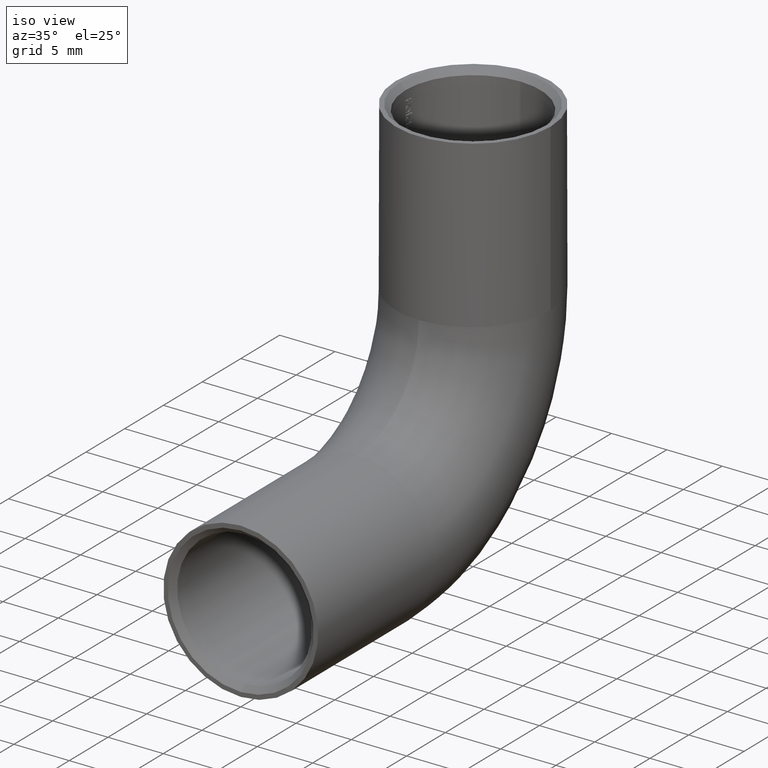
[diagram: clean part render]
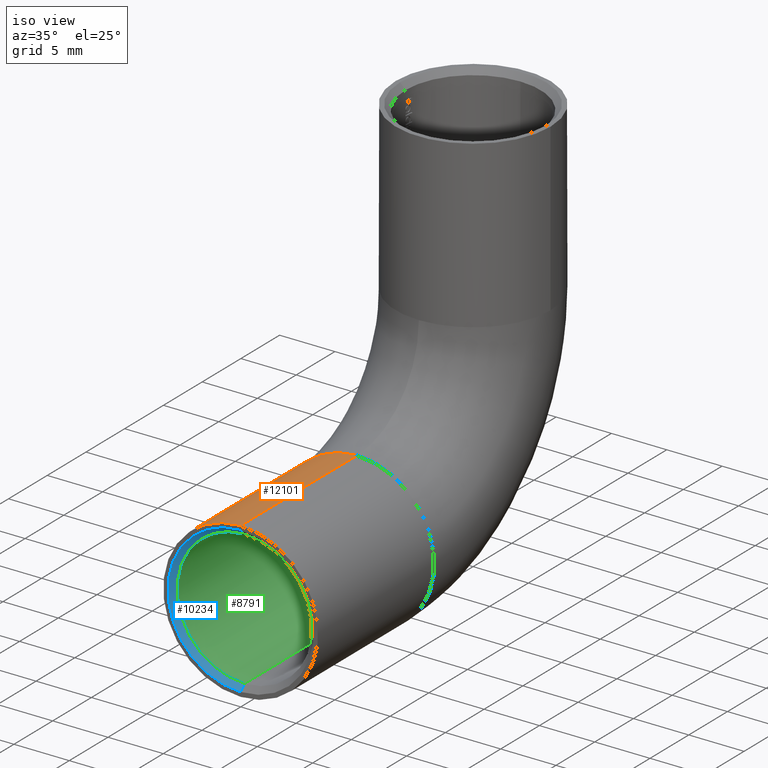
[diagram: same view with three faces highlighted in distinct colors, each labeled with its STEP entity id]
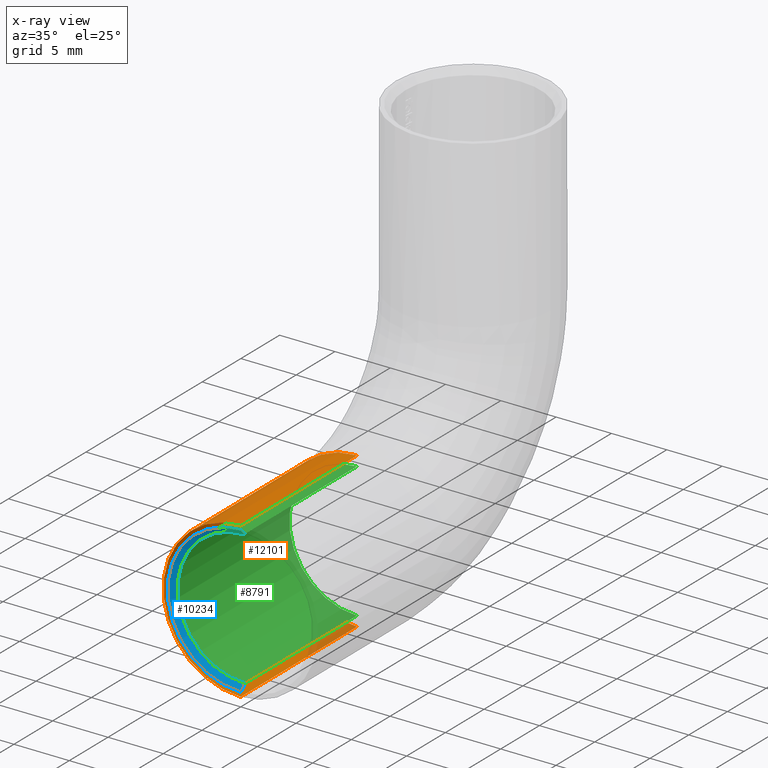
[diagram: x-ray of the same camera — body ghosted, the three highlighted faces saturated]
A machine part, iso view with three faces highlighted in distinct colors.
The next image is the same camera in x-ray (body ghosted, the three faces saturated) — at least one of them is partly hidden behind the body in this view.
Their STEP definitions:

[orange] entity #12101 — the highlighted cylindrical surface (partial cylindrical patch) has radius 7 mm, axis along (-0, -1, -0).
#1 = VERTEX_POINT ( 'NONE', #10542 ) ;
#294 = CARTESIAN_POINT ( 'NONE',  ( 0.000000000000000000, 0.000000000000000000, 0.000000000000000000 ) ) ;
#340 = EDGE_LOOP ( 'NONE', ( #7789, #990, #2718, #6405 ) ) ;
#864 = CARTESIAN_POINT ( 'NONE',  ( 8.572527594031474176E-16, 14.99999999999999645, 7.000000000000002665 ) ) ;
#990 = ORIENTED_EDGE ( 'NONE', *, *, #6278, .F. ) ;
#1007 = AXIS2_PLACEMENT_3D ( 'NONE', #4500, #3562, #1399 ) ;
#1399 = DIRECTION ( 'NONE',  ( 0.000000000000000000, 0.000000000000000000, 1.000000000000000000 ) ) ;
#1827 = FACE_OUTER_BOUND ( 'NONE', #340, .T. ) ;
#2207 = DIRECTION ( 'NONE',  ( 0.000000000000000000, 0.000000000000000000, 1.000000000000000000 ) ) ;
#2718 = ORIENTED_EDGE ( 'NONE', *, *, #8058, .T. ) ;
#3151 = DIRECTION ( 'NONE',  ( -0.000000000000000000, -1.000000000000000000, -1.156482317317872711E-16 ) ) ;
#3515 = CIRCLE ( 'NONE', #6866, 7.000000000000000000 ) ;
#3562 = DIRECTION ( 'NONE',  ( 0.000000000000000000, 1.000000000000000000, 0.000000000000000000 ) ) ;
#3849 = CARTESIAN_POINT ( 'NONE',  ( 8.572527594031473190E-16, 0.000000000000000000, 7.000000000000000000 ) ) ;
#4500 = CARTESIAN_POINT ( 'NONE',  ( 0.000000000000000000, 14.99999999999999645, 1.734723475976808672E-15 ) ) ;
#5814 = LINE ( 'NONE', #8372, #9744 ) ;
#5820 = DIRECTION ( 'NONE',  ( 0.000000000000000000, 0.000000000000000000, -1.000000000000000000 ) ) ;
#6159 = EDGE_CURVE ( 'NONE', #1, #11276, #3515, .T. ) ;
#6278 = EDGE_CURVE ( 'NONE', #8747, #7670, #12522, .T. ) ;
#6405 = ORIENTED_EDGE ( 'NONE', *, *, #6159, .T. ) ;
#6668 = LINE ( 'NONE', #7168, #12828 ) ;
#6866 = AXIS2_PLACEMENT_3D ( 'NONE', #294, #12358, #2207 ) ;
#7044 = AXIS2_PLACEMENT_3D ( 'NONE', #12886, #11196, #5820 ) ;
#7046 = CYLINDRICAL_SURFACE ( 'NONE', #7044, 7.000000000000000000 ) ;
#7168 = CARTESIAN_POINT ( 'NONE',  ( 0.000000000000000000, 14.99999999999999645, -6.999999999999998224 ) ) ;
#7214 = DIRECTION ( 'NONE',  ( -0.000000000000000000, -1.000000000000000000, -1.156482317317872711E-16 ) ) ;
#7670 = VERTEX_POINT ( 'NONE', #864 ) ;
#7789 = ORIENTED_EDGE ( 'NONE', *, *, #10122, .F. ) ;
#8058 = EDGE_CURVE ( 'NONE', #8747, #1, #6668, .T. ) ;
#8372 = CARTESIAN_POINT ( 'NONE',  ( 8.572527594031473190E-16, 14.99999999999999645, 7.000000000000001776 ) ) ;
#8747 = VERTEX_POINT ( 'NONE', #12668 ) ;
#9744 = VECTOR ( 'NONE', #3151, 1000.000000000000000 ) ;
#10122 = EDGE_CURVE ( 'NONE', #7670, #11276, #5814, .T. ) ;
#10542 = CARTESIAN_POINT ( 'NONE',  ( 0.000000000000000000, 0.000000000000000000, -7.000000000000000888 ) ) ;
#11196 = DIRECTION ( 'NONE',  ( -0.000000000000000000, -1.000000000000000000, -1.156482317317872711E-16 ) ) ;
#11276 = VERTEX_POINT ( 'NONE', #3849 ) ;
#12101 = ADVANCED_FACE ( 'NONE', ( #1827 ), #7046, .T. ) ;
#12358 = DIRECTION ( 'NONE',  ( 0.000000000000000000, 1.000000000000000000, 0.000000000000000000 ) ) ;
#12522 = CIRCLE ( 'NONE', #1007, 7.000000000000000000 ) ;
#12668 = CARTESIAN_POINT ( 'NONE',  ( 0.000000000000000000, 14.99999999999999645, -6.999999999999998224 ) ) ;
#12828 = VECTOR ( 'NONE', #7214, 1000.000000000000000 ) ;
#12886 = CARTESIAN_POINT ( 'NONE',  ( 0.000000000000000000, 14.99999999999999645, 1.734723475976808672E-15 ) ) ;

[blue] entity #10234 — the highlighted conical surface has half-angle 45 deg.
#344 = CARTESIAN_POINT ( 'NONE',  ( 0.000000000000000000, 0.4999999999999952260, 0.000000000000000000 ) ) ;
#522 = VERTEX_POINT ( 'NONE', #5630 ) ;
#1171 = EDGE_LOOP ( 'NONE', ( #8459, #1189, #8956, #7878 ) ) ;
#1189 = ORIENTED_EDGE ( 'NONE', *, *, #6435, .T. ) ;
#1712 = CARTESIAN_POINT ( 'NONE',  ( 0.000000000000000000, 0.4999999999999952260, 0.000000000000000000 ) ) ;
#2005 = FACE_OUTER_BOUND ( 'NONE', #1171, .T. ) ;
#2038 = CARTESIAN_POINT ( 'NONE',  ( 0.000000000000000000, 0.4999999999999952260, -6.099999999999999645 ) ) ;
#2268 = VERTEX_POINT ( 'NONE', #2038 ) ;
#2412 = CIRCLE ( 'NONE', #11595, 6.599999999999994316 ) ;
#3105 = AXIS2_PLACEMENT_3D ( 'NONE', #344, #3205, #10387 ) ;
#3205 = DIRECTION ( 'NONE',  ( 0.000000000000000000, -1.000000000000000000, 0.000000000000000000 ) ) ;
#3462 = CIRCLE ( 'NONE', #6518, 6.099999999999999645 ) ;
#3929 = CARTESIAN_POINT ( 'NONE',  ( 0.000000000000000000, 0.4999999999999952260, -6.099999999999999645 ) ) ;
#3980 = CARTESIAN_POINT ( 'NONE',  ( 7.470345474798854293E-16, 0.4999999999999952260, 6.099999999999999645 ) ) ;
#4845 = DIRECTION ( 'NONE',  ( 0.000000000000000000, 1.000000000000000000, 0.000000000000000000 ) ) ;
#4934 = LINE ( 'NONE', #3980, #9519 ) ;
#5088 = CARTESIAN_POINT ( 'NONE',  ( 0.000000000000000000, 0.000000000000000000, -6.599999999999994316 ) ) ;
#5218 = CARTESIAN_POINT ( 'NONE',  ( 8.082668874372524117E-16, 0.000000000000000000, 6.599999999999994316 ) ) ;
#5630 = CARTESIAN_POINT ( 'NONE',  ( 7.470345474798854293E-16, 0.4999999999999952260, 6.099999999999999645 ) ) ;
#5810 = CONICAL_SURFACE ( 'NONE', #3105, 6.099999999999999645, 0.7853981633974482790 ) ;
#5866 = DIRECTION ( 'NONE',  ( 0.000000000000000000, 0.000000000000000000, 1.000000000000000000 ) ) ;
#6435 = EDGE_CURVE ( 'NONE', #522, #11318, #4934, .T. ) ;
#6518 = AXIS2_PLACEMENT_3D ( 'NONE', #1712, #11838, #6891 ) ;
#6891 = DIRECTION ( 'NONE',  ( 0.000000000000000000, 0.000000000000000000, 1.000000000000000000 ) ) ;
#6893 = EDGE_CURVE ( 'NONE', #8126, #11318, #2412, .T. ) ;
#7544 = VECTOR ( 'NONE', #13099, 1000.000000000000114 ) ;
#7878 = ORIENTED_EDGE ( 'NONE', *, *, #10397, .F. ) ;
#8126 = VERTEX_POINT ( 'NONE', #5088 ) ;
#8459 = ORIENTED_EDGE ( 'NONE', *, *, #9504, .F. ) ;
#8500 = LINE ( 'NONE', #3929, #7544 ) ;
#8956 = ORIENTED_EDGE ( 'NONE', *, *, #6893, .F. ) ;
#9504 = EDGE_CURVE ( 'NONE', #522, #2268, #3462, .T. ) ;
#9519 = VECTOR ( 'NONE', #12074, 1000.000000000000114 ) ;
#10234 = ADVANCED_FACE ( 'NONE', ( #2005 ), #5810, .F. ) ;
#10387 = DIRECTION ( 'NONE',  ( 0.000000000000000000, 0.000000000000000000, -1.000000000000000000 ) ) ;
#10397 = EDGE_CURVE ( 'NONE', #2268, #8126, #8500, .T. ) ;
#10857 = CARTESIAN_POINT ( 'NONE',  ( 0.000000000000000000, 0.000000000000000000, 0.000000000000000000 ) ) ;
#11318 = VERTEX_POINT ( 'NONE', #5218 ) ;
#11595 = AXIS2_PLACEMENT_3D ( 'NONE', #10857, #4845, #5866 ) ;
#11838 = DIRECTION ( 'NONE',  ( 0.000000000000000000, -1.000000000000000000, 0.000000000000000000 ) ) ;
#12074 = DIRECTION ( 'NONE',  ( 8.659560562354932858E-17, -0.7071067811865474617, 0.7071067811865474617 ) ) ;
#13099 = DIRECTION ( 'NONE',  ( 0.000000000000000000, -0.7071067811865474617, -0.7071067811865474617 ) ) ;

[green] entity #8791 — the highlighted cylindrical surface (partial cylindrical patch) has radius 6.1 mm, axis along (-0, -1, -0).
#302 = AXIS2_PLACEMENT_3D ( 'NONE', #12379, #7259, #9383 ) ;
#522 = VERTEX_POINT ( 'NONE', #5630 ) ;
#628 = FACE_OUTER_BOUND ( 'NONE', #9158, .T. ) ;
#1087 = CARTESIAN_POINT ( 'NONE',  ( 7.470345474798854293E-16, 15.00000000000000000, 6.099999999999999645 ) ) ;
#1316 = EDGE_CURVE ( 'NONE', #3170, #2268, #10549, .T. ) ;
#1712 = CARTESIAN_POINT ( 'NONE',  ( 0.000000000000000000, 0.4999999999999952260, 0.000000000000000000 ) ) ;
#1748 = DIRECTION ( 'NONE',  ( 0.000000000000000000, 0.000000000000000000, -1.000000000000000000 ) ) ;
#1860 = CARTESIAN_POINT ( 'NONE',  ( 0.000000000000000000, 15.00000000000000000, -6.099999999999999645 ) ) ;
#2038 = CARTESIAN_POINT ( 'NONE',  ( 0.000000000000000000, 0.4999999999999952260, -6.099999999999999645 ) ) ;
#2268 = VERTEX_POINT ( 'NONE', #2038 ) ;
#2663 = AXIS2_PLACEMENT_3D ( 'NONE', #2682, #8969, #1748 ) ;
#2682 = CARTESIAN_POINT ( 'NONE',  ( 0.000000000000000000, 15.00000000000000000, 0.000000000000000000 ) ) ;
#2914 = EDGE_CURVE ( 'NONE', #7989, #3170, #12099, .T. ) ;
#3020 = ORIENTED_EDGE ( 'NONE', *, *, #8625, .T. ) ;
#3170 = VERTEX_POINT ( 'NONE', #1860 ) ;
#3362 = ORIENTED_EDGE ( 'NONE', *, *, #2914, .F. ) ;
#3462 = CIRCLE ( 'NONE', #6518, 6.099999999999999645 ) ;
#3588 = CARTESIAN_POINT ( 'NONE',  ( 7.470345474798854293E-16, 15.00000000000000000, 6.099999999999999645 ) ) ;
#5544 = LINE ( 'NONE', #1087, #11876 ) ;
#5630 = CARTESIAN_POINT ( 'NONE',  ( 7.470345474798854293E-16, 0.4999999999999952260, 6.099999999999999645 ) ) ;
#5963 = DIRECTION ( 'NONE',  ( -0.000000000000000000, -1.000000000000000000, -0.000000000000000000 ) ) ;
#6518 = AXIS2_PLACEMENT_3D ( 'NONE', #1712, #11838, #6891 ) ;
#6891 = DIRECTION ( 'NONE',  ( 0.000000000000000000, 0.000000000000000000, 1.000000000000000000 ) ) ;
#7259 = DIRECTION ( 'NONE',  ( 0.000000000000000000, -1.000000000000000000, 0.000000000000000000 ) ) ;
#7879 = VECTOR ( 'NONE', #5963, 1000.000000000000000 ) ;
#7989 = VERTEX_POINT ( 'NONE', #3588 ) ;
#8625 = EDGE_CURVE ( 'NONE', #7989, #522, #5544, .T. ) ;
#8791 = ADVANCED_FACE ( 'NONE', ( #628 ), #11710, .F. ) ;
#8969 = DIRECTION ( 'NONE',  ( -0.000000000000000000, -1.000000000000000000, -0.000000000000000000 ) ) ;
#9158 = EDGE_LOOP ( 'NONE', ( #3362, #3020, #9557, #12848 ) ) ;
#9383 = DIRECTION ( 'NONE',  ( 0.000000000000000000, 0.000000000000000000, -1.000000000000000000 ) ) ;
#9504 = EDGE_CURVE ( 'NONE', #522, #2268, #3462, .T. ) ;
#9557 = ORIENTED_EDGE ( 'NONE', *, *, #9504, .T. ) ;
#9967 = CARTESIAN_POINT ( 'NONE',  ( 0.000000000000000000, 15.00000000000000000, -6.099999999999999645 ) ) ;
#10549 = LINE ( 'NONE', #9967, #7879 ) ;
#11710 = CYLINDRICAL_SURFACE ( 'NONE', #2663, 6.099999999999999645 ) ;
#11838 = DIRECTION ( 'NONE',  ( 0.000000000000000000, -1.000000000000000000, 0.000000000000000000 ) ) ;
#11876 = VECTOR ( 'NONE', #12316, 1000.000000000000000 ) ;
#12099 = CIRCLE ( 'NONE', #302, 6.099999999999999645 ) ;
#12316 = DIRECTION ( 'NONE',  ( -0.000000000000000000, -1.000000000000000000, -0.000000000000000000 ) ) ;
#12379 = CARTESIAN_POINT ( 'NONE',  ( 0.000000000000000000, 15.00000000000000000, 0.000000000000000000 ) ) ;
#12848 = ORIENTED_EDGE ( 'NONE', *, *, #1316, .F. ) ;